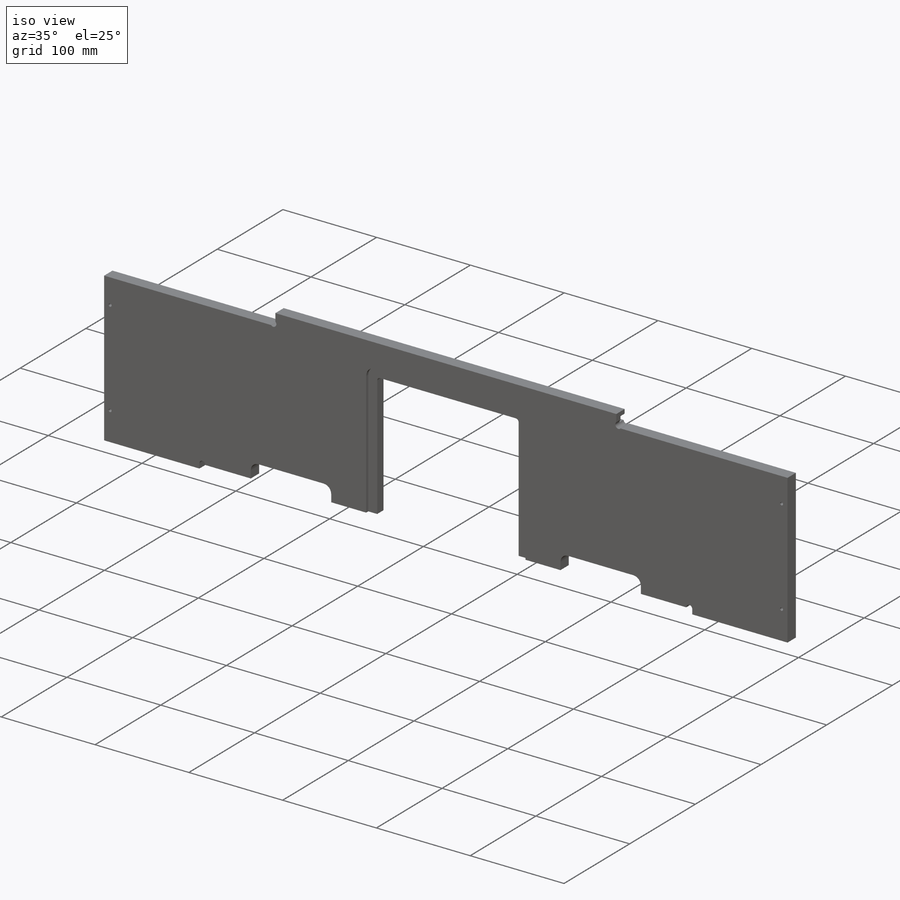
[diagram: iso view]
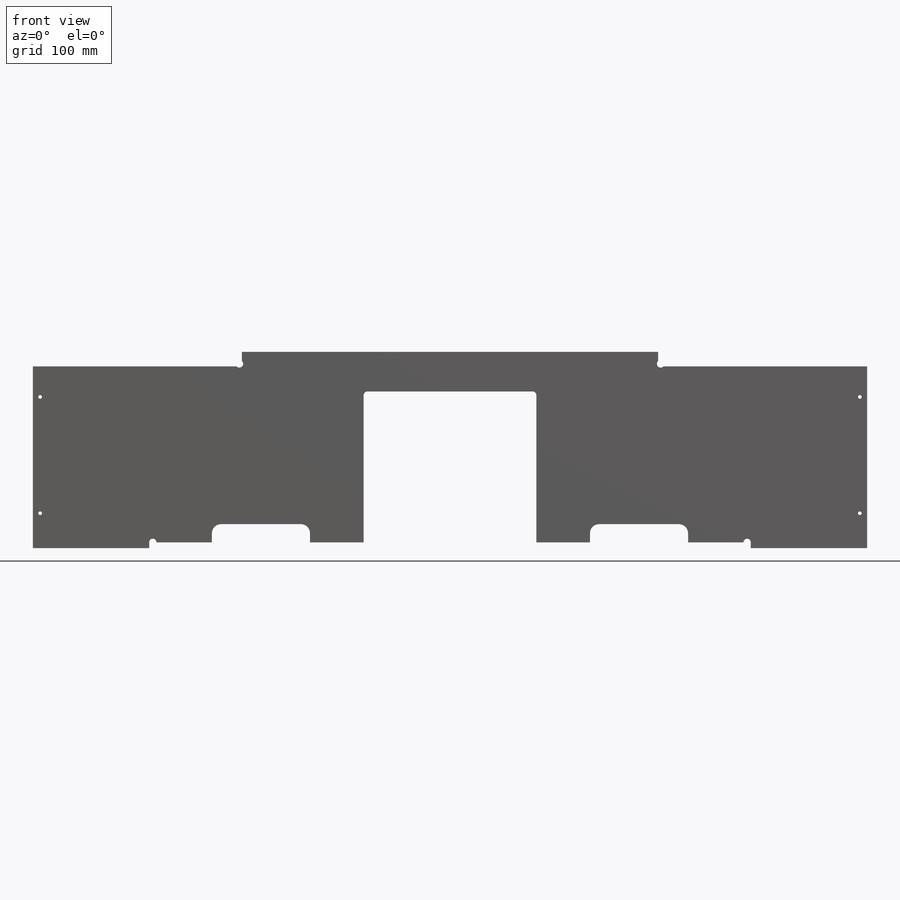
[diagram: front view]
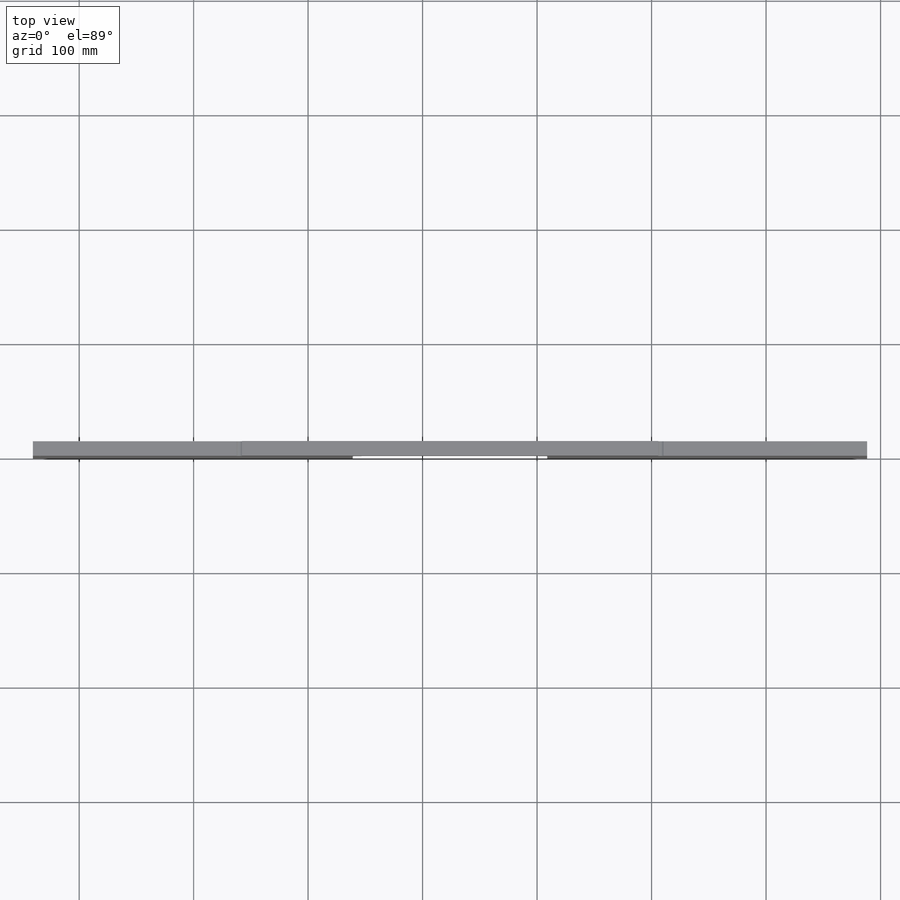
[diagram: top view]
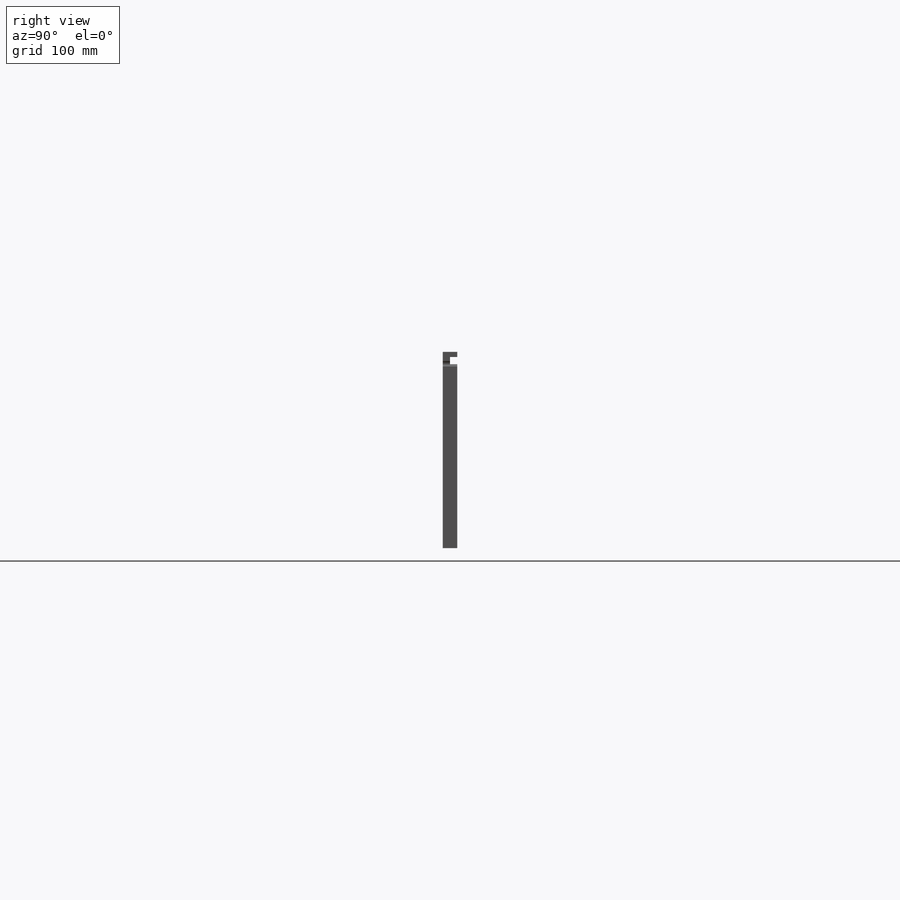
[diagram: right view]
SOLIDWORKS PART (.sldprt)
format: sldprt  version: not decoded by parser v0  size: 561,152 bytes
history: native  units: mm
features: sketch x8, cut_extrude x5, extrude x2, material x1 (+15 scaffold rows collapsed)
feature tree (31):
  scaffold x15  (default folders/planes/origin — collapsed)
  material  "Pine"
  sketch  "Sketch1"
  sketch  "Sketch2"  dims[c1.D1=12.7mm c1.D2=176.2125mm c1.D3=152.4mm c2.D1=12.7mm c2.D2=166.37mm]
  extrude  "Extrude1"  Depth=12.7mm
  sketch  "Sketch6"  dims[c1.D1=3.175mm c2.D1=135.0deg c3.D1=3.175mm c4.D1=45.0deg c5.D1=3.175mm c6.D1=45.0deg c7.D1=~2.245064mm c8.D1=45.0deg c8.D2=3.175mm c8.D3=3.175mm c9.D3=45.0deg c9.D4=3.175mm]
  cut_extrude  "Cut-Extrude4"  [1 undecoded]
  sketch  "Sketch3"
  cut_extrude  "Cut-Extrude1"  Depth=3.175mm
  sketch  "Sketch4"
  cut_extrude  "Cut-Extrude2"  [1 undecoded]
  sketch  "Sketch5"
  cut_extrude  "Cut-Extrude3"  Depth=6.35mm
  sketch  "Sketch7"  dims[D1=5.08mm D2=101.6mm D3=101.6mm]
  extrude  "Extrude2"  [1 undecoded]
  sketch  "Sketch8"  dims[c1.D1=3.302mm c2.D1=45.0deg c3.D1=6.35mm]
  cut_extrude  "Cut-Extrude5"  [1 undecoded]
decode coverage: 7 of 15 modeling features carry decoded parameters
note: ~ marks probable driven/reference dimensions
note: 4 parameter values undecoded
summary: no parameter record found for 4 features
note: suppression state not decoded; provenance and decode notes live in map.json
